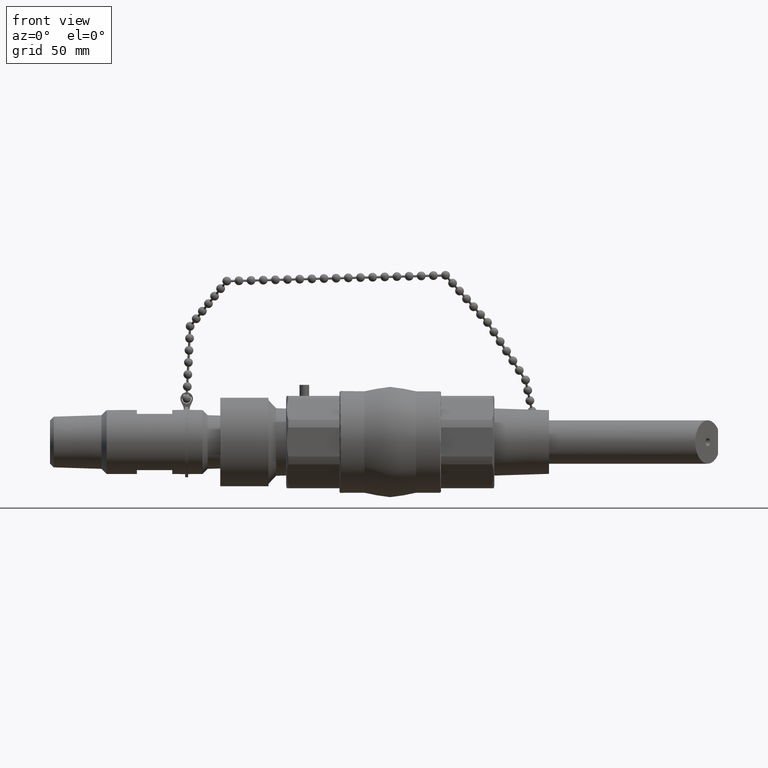
[diagram: clean part render]
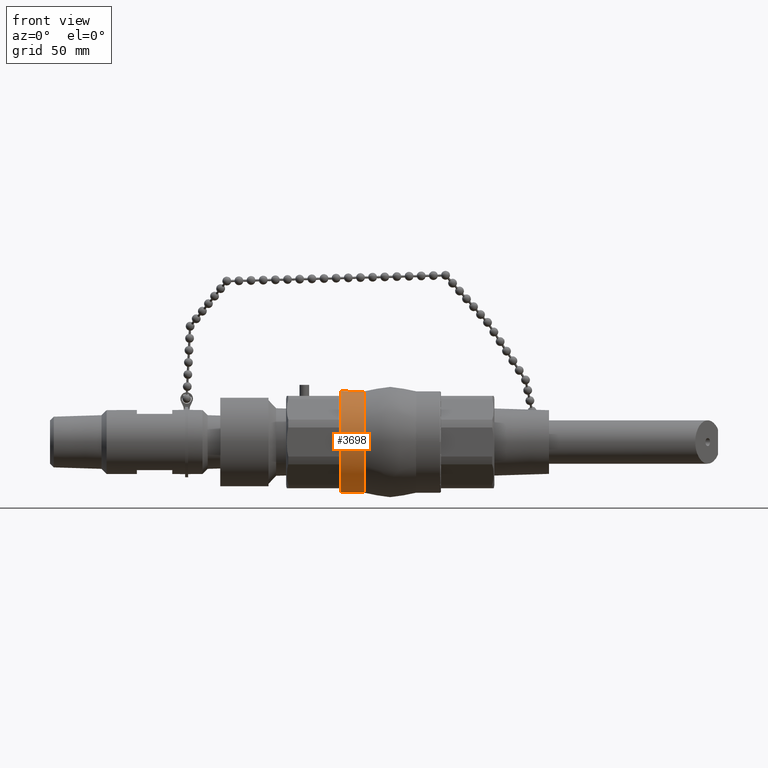
[diagram: same view with one face highlighted and labeled with its STEP entity id]
A machine part, front view. The second image highlights one B-rep face of the part: STEP entity #3698.
In plain terms, the highlighted cylindrical surface (bore or boss wall) has radius 20.1295 mm, axis along (-1, 0, -0).
Its self-contained STEP definition (entity closure, byte-faithful):
#1768=CARTESIAN_POINT('',(-0.402500000000000,0.694289204870708,0.382123998199537));
#1769=VERTEX_POINT('',#1768);
#1785=CARTESIAN_POINT('',(-0.402500000000000,0.694289204870708,-0.382123998199537));
#1786=VERTEX_POINT('',#1785);
#1787=CARTESIAN_POINT('',(-0.402500000000000,0.0,-4.929203E-017));
#1788=DIRECTION('',(-1.0,0.0,0.0));
#1789=DIRECTION('',(0.0,1.0,0.0));
#1790=AXIS2_PLACEMENT_3D('',#1787,#1788,#1789);
#1791=CIRCLE('',#1790,0.792500000000000);
#1792=EDGE_CURVE('',#1786,#1769,#1791,.T.);
#3662=CARTESIAN_POINT('',(-1.010250000000000,0.0,-1.237199E-016));
#3663=DIRECTION('',(-1.0,0.0,-1.224647E-016));
#3664=DIRECTION('',(0.0,1.0,0.0));
#3665=AXIS2_PLACEMENT_3D('',#3662,#3663,#3664);
#3666=CYLINDRICAL_SURFACE('',#3665,0.792500000000000);
#3667=ORIENTED_EDGE('',*,*,#1792,.T.);
#3668=CARTESIAN_POINT('',(-0.402500000000000,0.694289204870708,0.382123998199537));
#3669=CARTESIAN_POINT('',(-0.445991388115991,0.719502449717207,0.336313518357479));
#3670=CARTESIAN_POINT('',(-0.484438606626481,0.744525616476509,0.279388910762243));
#3671=CARTESIAN_POINT('',(-0.525570669144028,0.772102159161733,0.182115581408095));
#3672=CARTESIAN_POINT('',(-0.536675348497231,0.779758645760761,0.146248570559199));
#3673=CARTESIAN_POINT('',(-0.551393112804413,0.789960429895558,0.073312408489155));
#3674=CARTESIAN_POINT('',(-0.555000000000000,0.792500000000000,0.036241205771124));
#3675=CARTESIAN_POINT('',(-0.555000000000000,0.792500000000000,-0.036241205771124));
#3676=CARTESIAN_POINT('',(-0.551393112804413,0.789960429895558,-0.073312408489155));
#3677=CARTESIAN_POINT('',(-0.536675348497231,0.779758645760761,-0.146248570559199));
#3678=CARTESIAN_POINT('',(-0.525570669144028,0.772102159161734,-0.182115581408095));
#3679=CARTESIAN_POINT('',(-0.484438606626481,0.744525616476509,-0.279388910762243));
#3680=CARTESIAN_POINT('',(-0.445991388115991,0.719502449717207,-0.336313518357479));
#3681=CARTESIAN_POINT('',(-0.402500000000000,0.694289204870708,-0.382123998199537));
#3682=B_SPLINE_CURVE_WITH_KNOTS('',3,(#3668,#3669,#3670,#3671,#3672,#3673,#3674,#3675,#3676,#3677,#3678,#3679,#3680,#3681),.UNSPECIFIED.,.F.,.U.,(4,2,2,2,2,2,4),(1.159900147248421,1.672981997358711,1.949139985334678,2.225297973310644,2.501455961286610,2.777613949262577,3.290695799372867),.UNSPECIFIED.);
#3683=EDGE_CURVE('',#1769,#1786,#3682,.T.);
#3684=ORIENTED_EDGE('',*,*,#3683,.T.);
#3685=EDGE_LOOP('',(#3667,#3684));
#3686=FACE_OUTER_BOUND('',#3685,.T.);
#3687=CARTESIAN_POINT('',(-0.768000000000000,2.426331E-016,0.792500000000000));
#3688=VERTEX_POINT('',#3687);
#3689=CARTESIAN_POINT('',(-0.768000000000000,0.0,-9.405287E-017));
#3690=DIRECTION('',(-1.0,0.0,0.0));
#3691=DIRECTION('',(0.0,0.0,-1.0));
#3692=AXIS2_PLACEMENT_3D('',#3689,#3690,#3691);
#3693=CIRCLE('',#3692,0.792500000000000);
#3694=EDGE_CURVE('',#3688,#3688,#3693,.T.);
#3695=ORIENTED_EDGE('',*,*,#3694,.F.);
#3696=EDGE_LOOP('',(#3695));
#3697=FACE_BOUND('',#3696,.T.);
#3698=ADVANCED_FACE('',(#3686,#3697),#3666,.T.);